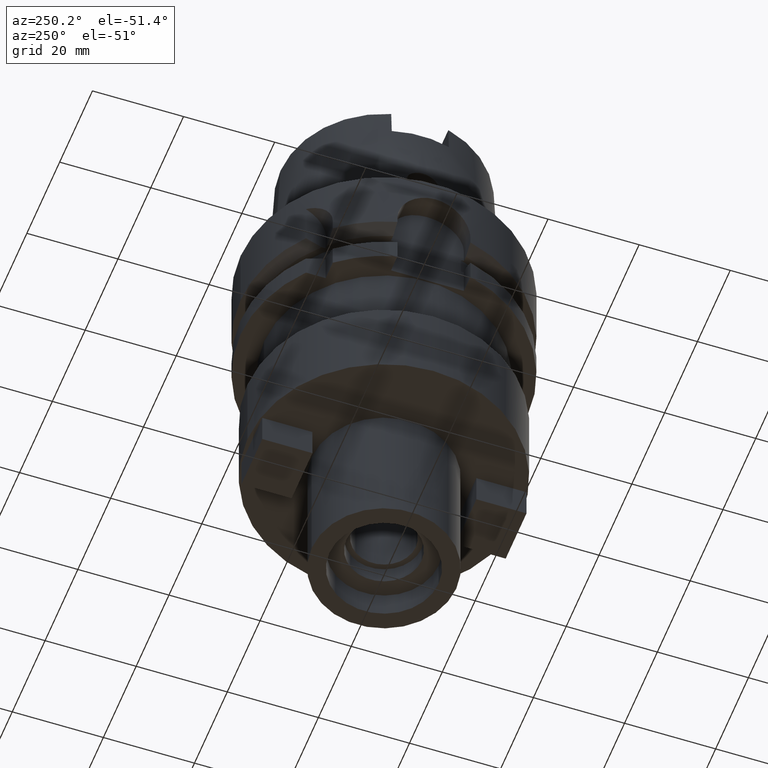
[diagram: clean part render]
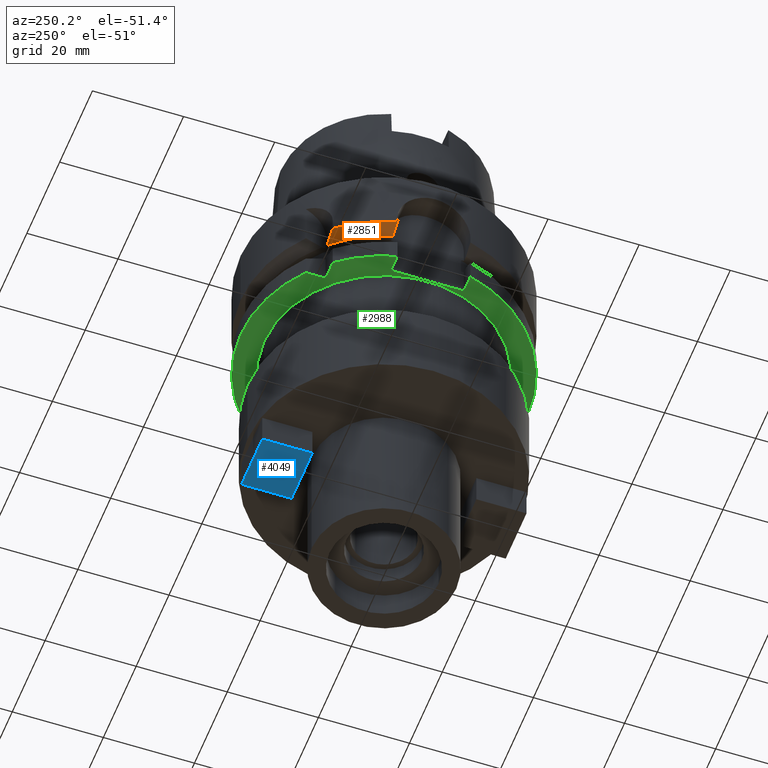
[diagram: same view with three faces highlighted in distinct colors, each labeled with its STEP entity id]
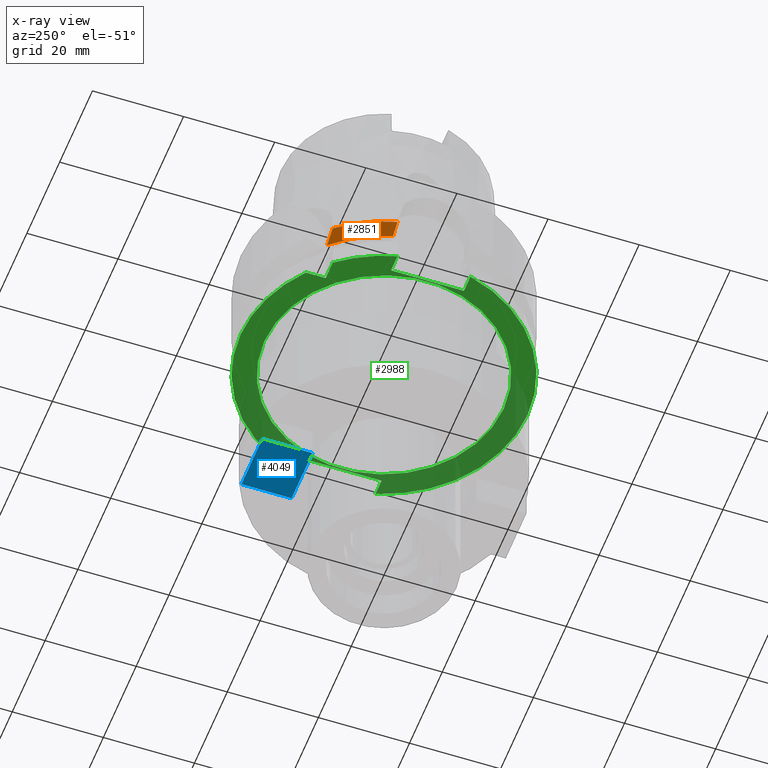
[diagram: x-ray of the same camera — body ghosted, the three highlighted faces saturated]
A machine part, auxiliary view with three faces highlighted in distinct colors.
The next image is the same camera in x-ray (body ghosted, the three faces saturated) — at least one of them is partly hidden behind the body in this view.
Their STEP definitions:

[orange] entity #2851 — the highlighted conical surface has half-angle 60 deg.
#460=CARTESIAN_POINT('',(0.E0,0.E0,-1.6125E1));
#461=DIRECTION('',(0.E0,0.E0,1.E0));
#462=DIRECTION('',(-7.218024800374E-1,6.920991112636E-1,0.E0));
#463=AXIS2_PLACEMENT_3D('',#460,#461,#462);
#521=CARTESIAN_POINT('',(-2.433618953148E1,1.999999697720E1,-1.462251175989E1));
#522=CARTESIAN_POINT('',(-2.395174171160E1,1.999999697720E1,-1.479399389767E1));
#523=CARTESIAN_POINT('',(-2.318173838765E1,1.999999953252E1,-1.513446054421E1));
#524=CARTESIAN_POINT('',(-2.202234111826E1,2.000000617040E1,-1.563508154141E1));
#525=CARTESIAN_POINT('',(-2.124691212043E1,1.999998591407E1,-1.596312843124E1));
#526=CARTESIAN_POINT('',(-2.085848281392E1,1.999998591407E1,-1.6125E1));
#538=CARTESIAN_POINT('',(0.E0,0.E0,-1.462250092524E1));
#539=DIRECTION('',(0.E0,0.E0,1.E0));
#540=DIRECTION('',(-7.725773665802E-1,6.349206349206E-1,0.E0));
#541=AXIS2_PLACEMENT_3D('',#538,#539,#540);
#546=CARTESIAN_POINT('',(-3.046719550003E1,7.999999897667E0,-1.462250185421E1));
#547=CARTESIAN_POINT('',(-3.016036583979E1,7.999999897667E0,-1.479384180511E1));
#548=CARTESIAN_POINT('',(-2.955133560422E1,7.999999980732E0,-1.513360218246E1));
#549=CARTESIAN_POINT('',(-2.865166888777E1,8.000000220938E0,-1.563444902905E1));
#550=CARTESIAN_POINT('',(-2.806112789125E1,7.999999497324E0,-1.596247304775E1));
#551=CARTESIAN_POINT('',(-2.776817315217E1,7.999999497324E0,-1.6125E1));
#2423=CARTESIAN_POINT('',(-2.776817315217E1,7.999999497324E0,-1.6125E1));
#2424=VERTEX_POINT('',#2423);
#2425=VERTEX_POINT('',#546);
#2473=CARTESIAN_POINT('',(-2.085848281392E1,1.999998591407E1,-1.6125E1));
#2474=VERTEX_POINT('',#2473);
#2484=VERTEX_POINT('',#521);
#2839=CARTESIAN_POINT('',(0.E0,0.E0,-1.537375046262E1));
#2840=DIRECTION('',(0.E0,0.E0,1.E0));
#2841=DIRECTION('',(0.E0,1.E0,0.E0));
#2842=AXIS2_PLACEMENT_3D('',#2839,#2840,#2841);
#2843=CONICAL_SURFACE('',#2842,3.019879763210E1,6.E1);
#2844=ORIENTED_EDGE('',*,*,#2823,.F.);
#2845=ORIENTED_EDGE('',*,*,#2758,.T.);
#2847=ORIENTED_EDGE('',*,*,#2846,.T.);
#2848=ORIENTED_EDGE('',*,*,#2792,.F.);
#2849=EDGE_LOOP('',(#2844,#2845,#2847,#2848));
#2850=FACE_OUTER_BOUND('',#2849,.F.);
#464=CIRCLE('',#463,2.889759526419E1);
#527=B_SPLINE_CURVE_WITH_KNOTS('',3,(#521,#522,#523,#524,#525,#526),
.UNSPECIFIED.,.F.,.F.,(4,1,1,4),(0.E0,3.333333333333E-1,6.666666666667E-1,1.E0),
.UNSPECIFIED.);
#542=CIRCLE('',#541,3.15E1);
#552=B_SPLINE_CURVE_WITH_KNOTS('',3,(#546,#547,#548,#549,#550,#551),
.UNSPECIFIED.,.F.,.F.,(4,1,1,4),(0.E0,3.333333333333E-1,6.666666666667E-1,1.E0),
.UNSPECIFIED.);
#2758=EDGE_CURVE('',#2484,#2425,#542,.T.);
#2792=EDGE_CURVE('',#2474,#2424,#464,.T.);
#2823=EDGE_CURVE('',#2484,#2474,#527,.T.);
#2846=EDGE_CURVE('',#2425,#2424,#552,.T.);
#2851=ADVANCED_FACE('',(#2850),#2843,.T.);

[blue] entity #4049 — the highlighted planar face has unit normal (0, 0, -1).
#2034=DIRECTION('',(-1.E0,0.E0,0.E0));
#2035=VECTOR('',#2034,1.27E1);
#2036=CARTESIAN_POINT('',(6.35E0,1.8E1,-6.7E1));
#2037=LINE('',#2036,#2035);
#2062=DIRECTION('',(0.E0,-1.E0,0.E0));
#2063=VECTOR('',#2062,1.1E1);
#2064=CARTESIAN_POINT('',(6.35E0,2.9E1,-6.7E1));
#2065=LINE('',#2064,#2063);
#2090=DIRECTION('',(0.E0,-1.E0,0.E0));
#2091=VECTOR('',#2090,1.1E1);
#2092=CARTESIAN_POINT('',(-6.35E0,2.9E1,-6.7E1));
#2093=LINE('',#2092,#2091);
#2097=DIRECTION('',(-1.E0,0.E0,0.E0));
#2098=VECTOR('',#2097,1.27E1);
#2099=CARTESIAN_POINT('',(6.35E0,2.9E1,-6.7E1));
#2100=LINE('',#2099,#2098);
#2492=CARTESIAN_POINT('',(-6.35E0,1.8E1,-6.7E1));
#2493=VERTEX_POINT('',#2492);
#2494=CARTESIAN_POINT('',(-6.35E0,2.9E1,-6.7E1));
#2495=VERTEX_POINT('',#2494);
#2496=CARTESIAN_POINT('',(6.35E0,1.8E1,-6.7E1));
#2497=VERTEX_POINT('',#2496);
#2498=CARTESIAN_POINT('',(6.35E0,2.9E1,-6.7E1));
#2499=VERTEX_POINT('',#2498);
#4038=CARTESIAN_POINT('',(-6.35E0,1.8E1,-6.7E1));
#4039=DIRECTION('',(0.E0,0.E0,-1.E0));
#4040=DIRECTION('',(0.E0,1.E0,0.E0));
#4041=AXIS2_PLACEMENT_3D('',#4038,#4039,#4040);
#4042=PLANE('',#4041);
#4043=ORIENTED_EDGE('',*,*,#3990,.T.);
#4044=ORIENTED_EDGE('',*,*,#4005,.F.);
#4045=ORIENTED_EDGE('',*,*,#4019,.F.);
#4046=ORIENTED_EDGE('',*,*,#4032,.T.);
#4047=EDGE_LOOP('',(#4043,#4044,#4045,#4046));
#4048=FACE_OUTER_BOUND('',#4047,.F.);
#3990=EDGE_CURVE('',#2495,#2493,#2093,.T.);
#4005=EDGE_CURVE('',#2497,#2493,#2037,.T.);
#4019=EDGE_CURVE('',#2499,#2497,#2065,.T.);
#4032=EDGE_CURVE('',#2499,#2495,#2100,.T.);
#4049=ADVANCED_FACE('',(#4048),#4042,.T.);

[green] entity #2988 — the highlighted planar face has unit normal (0, 0, 1).
#659=DIRECTION('',(0.E0,1.E0,0.E0));
#660=VECTOR('',#659,1.6E1);
#661=CARTESIAN_POINT('',(-2.65E1,-8.E0,-2.6E1));
#662=LINE('',#661,#660);
#696=DIRECTION('',(-1.E0,-1.540316790609E-13,0.E0));
#697=VECTOR('',#696,4.336187047278E0);
#698=CARTESIAN_POINT('',(-2.E1,2.E1,-2.6E1));
#699=LINE('',#698,#697);
#703=CARTESIAN_POINT('',(0.E0,0.E0,-2.6E1));
#704=DIRECTION('',(0.E0,0.E0,1.E0));
#705=DIRECTION('',(-7.725773665802E-1,6.349206349206E-1,0.E0));
#706=AXIS2_PLACEMENT_3D('',#703,#704,#705);
#711=DIRECTION('',(-1.E0,-8.686570378871E-14,0.E0));
#712=VECTOR('',#711,3.967195473163E0);
#713=CARTESIAN_POINT('',(-2.65E1,-8.E0,-2.6E1));
#714=LINE('',#713,#712);
#718=CARTESIAN_POINT('',(0.E0,0.E0,-2.6E1));
#719=DIRECTION('',(0.E0,0.E0,1.E0));
#720=DIRECTION('',(-9.672125547036E-1,-2.539682539683E-1,0.E0));
#721=AXIS2_PLACEMENT_3D('',#718,#719,#720);
#726=CARTESIAN_POINT('',(0.E0,0.E0,-2.6E1));
#727=DIRECTION('',(0.E0,0.E0,1.E0));
#728=DIRECTION('',(0.E0,-1.E0,0.E0));
#729=AXIS2_PLACEMENT_3D('',#726,#727,#728);
#734=DIRECTION('',(0.E0,1.E0,0.E0));
#735=VECTOR('',#734,1.8E1);
#736=CARTESIAN_POINT('',(2.65E1,-9.E0,-2.6E1));
#737=LINE('',#736,#735);
#741=DIRECTION('',(1.E0,-7.275179563200E-14,0.E0));
#742=VECTOR('',#741,3.686917696248E0);
#743=CARTESIAN_POINT('',(2.65E1,9.E0,-2.6E1));
#744=LINE('',#743,#742);
#748=CARTESIAN_POINT('',(0.E0,0.E0,-2.6E1));
#749=DIRECTION('',(0.E0,0.E0,1.E0));
#750=DIRECTION('',(9.583148474999E-1,2.857142857143E-1,0.E0));
#751=AXIS2_PLACEMENT_3D('',#748,#749,#750);
#756=CARTESIAN_POINT('',(0.E0,0.E0,-2.6E1));
#757=DIRECTION('',(0.E0,0.E0,1.E0));
#758=DIRECTION('',(0.E0,1.E0,0.E0));
#759=AXIS2_PLACEMENT_3D('',#756,#757,#758);
#764=CARTESIAN_POINT('',(0.E0,0.E0,-2.6E1));
#765=DIRECTION('',(0.E0,0.E0,-1.E0));
#766=DIRECTION('',(0.E0,-1.E0,0.E0));
#767=AXIS2_PLACEMENT_3D('',#764,#765,#766);
#772=CARTESIAN_POINT('',(0.E0,0.E0,-2.6E1));
#773=DIRECTION('',(0.E0,0.E0,-1.E0));
#774=DIRECTION('',(0.E0,1.E0,0.E0));
#775=AXIS2_PLACEMENT_3D('',#772,#773,#774);
#780=DIRECTION('',(1.556703139446E-13,1.E0,0.E0));
#781=VECTOR('',#780,4.336187047278E0);
#782=CARTESIAN_POINT('',(-2.E1,2.E1,-2.6E1));
#783=LINE('',#782,#781);
#876=DIRECTION('',(1.E0,6.889739586341E-14,0.E0));
#877=VECTOR('',#876,3.686917696248E0);
#878=CARTESIAN_POINT('',(2.65E1,-9.E0,-2.6E1));
#879=LINE('',#878,#877);
#1234=DIRECTION('',(-1.E0,8.776122650818E-14,0.E0));
#1235=VECTOR('',#1234,3.967195473163E0);
#1236=CARTESIAN_POINT('',(-2.65E1,8.E0,-2.6E1));
#1237=LINE('',#1236,#1235);
#2334=CARTESIAN_POINT('',(0.E0,2.63E1,-2.6E1));
#2335=VERTEX_POINT('',#2334);
#2336=CARTESIAN_POINT('',(0.E0,-2.63E1,-2.6E1));
#2337=VERTEX_POINT('',#2336);
#2338=CARTESIAN_POINT('',(-2.E1,2.E1,-2.6E1));
#2339=CARTESIAN_POINT('',(-2.E1,2.433618704728E1,-2.6E1));
#2340=VERTEX_POINT('',#2338);
#2341=VERTEX_POINT('',#2339);
#2342=CARTESIAN_POINT('',(-2.433618704728E1,2.E1,-2.6E1));
#2343=VERTEX_POINT('',#2342);
#2344=CARTESIAN_POINT('',(-3.046719547316E1,8.E0,-2.6E1));
#2345=VERTEX_POINT('',#2344);
#2346=CARTESIAN_POINT('',(-2.65E1,8.E0,-2.6E1));
#2347=VERTEX_POINT('',#2346);
#2348=CARTESIAN_POINT('',(-2.65E1,-8.E0,-2.6E1));
#2349=VERTEX_POINT('',#2348);
#2350=CARTESIAN_POINT('',(-3.046719547316E1,-8.E0,-2.6E1));
#2351=VERTEX_POINT('',#2350);
#2352=CARTESIAN_POINT('',(-1.569039500652E-14,-3.15E1,-2.6E1));
#2353=CARTESIAN_POINT('',(3.018691769625E1,-9.E0,-2.6E1));
#2354=VERTEX_POINT('',#2352);
#2355=VERTEX_POINT('',#2353);
#2356=CARTESIAN_POINT('',(2.65E1,-9.E0,-2.6E1));
#2357=VERTEX_POINT('',#2356);
#2358=CARTESIAN_POINT('',(2.65E1,9.E0,-2.6E1));
#2359=VERTEX_POINT('',#2358);
#2360=CARTESIAN_POINT('',(3.018691769625E1,9.E0,-2.6E1));
#2361=VERTEX_POINT('',#2360);
#2362=CARTESIAN_POINT('',(0.E0,3.15E1,-2.6E1));
#2363=VERTEX_POINT('',#2362);
#2950=CARTESIAN_POINT('',(0.E0,0.E0,-2.6E1));
#2951=DIRECTION('',(0.E0,0.E0,1.E0));
#2952=DIRECTION('',(0.E0,1.E0,0.E0));
#2953=AXIS2_PLACEMENT_3D('',#2950,#2951,#2952);
#2954=PLANE('',#2953);
#2956=ORIENTED_EDGE('',*,*,#2955,.F.);
#2958=ORIENTED_EDGE('',*,*,#2957,.T.);
#2960=ORIENTED_EDGE('',*,*,#2959,.T.);
#2962=ORIENTED_EDGE('',*,*,#2961,.F.);
#2963=ORIENTED_EDGE('',*,*,#2927,.F.);
#2965=ORIENTED_EDGE('',*,*,#2964,.T.);
#2967=ORIENTED_EDGE('',*,*,#2966,.T.);
#2969=ORIENTED_EDGE('',*,*,#2968,.T.);
#2971=ORIENTED_EDGE('',*,*,#2970,.F.);
#2973=ORIENTED_EDGE('',*,*,#2972,.T.);
#2975=ORIENTED_EDGE('',*,*,#2974,.T.);
#2977=ORIENTED_EDGE('',*,*,#2976,.T.);
#2979=ORIENTED_EDGE('',*,*,#2978,.T.);
#2980=EDGE_LOOP('',(#2956,#2958,#2960,#2962,#2963,#2965,#2967,#2969,#2971,#2973,
#2975,#2977,#2979));
#2981=FACE_OUTER_BOUND('',#2980,.F.);
#2983=ORIENTED_EDGE('',*,*,#2982,.T.);
#2985=ORIENTED_EDGE('',*,*,#2984,.T.);
#2986=EDGE_LOOP('',(#2983,#2985));
#2987=FACE_BOUND('',#2986,.F.);
#707=CIRCLE('',#706,3.15E1);
#722=CIRCLE('',#721,3.15E1);
#730=CIRCLE('',#729,3.15E1);
#752=CIRCLE('',#751,3.15E1);
#760=CIRCLE('',#759,3.15E1);
#768=CIRCLE('',#767,2.63E1);
#776=CIRCLE('',#775,2.63E1);
#2927=EDGE_CURVE('',#2349,#2347,#662,.T.);
#2955=EDGE_CURVE('',#2340,#2341,#783,.T.);
#2957=EDGE_CURVE('',#2340,#2343,#699,.T.);
#2959=EDGE_CURVE('',#2343,#2345,#707,.T.);
#2961=EDGE_CURVE('',#2347,#2345,#1237,.T.);
#2964=EDGE_CURVE('',#2349,#2351,#714,.T.);
#2966=EDGE_CURVE('',#2351,#2354,#722,.T.);
#2968=EDGE_CURVE('',#2354,#2355,#730,.T.);
#2970=EDGE_CURVE('',#2357,#2355,#879,.T.);
#2972=EDGE_CURVE('',#2357,#2359,#737,.T.);
#2974=EDGE_CURVE('',#2359,#2361,#744,.T.);
#2976=EDGE_CURVE('',#2361,#2363,#752,.T.);
#2978=EDGE_CURVE('',#2363,#2341,#760,.T.);
#2982=EDGE_CURVE('',#2337,#2335,#768,.T.);
#2984=EDGE_CURVE('',#2335,#2337,#776,.T.);
#2988=ADVANCED_FACE('',(#2981,#2987),#2954,.F.);